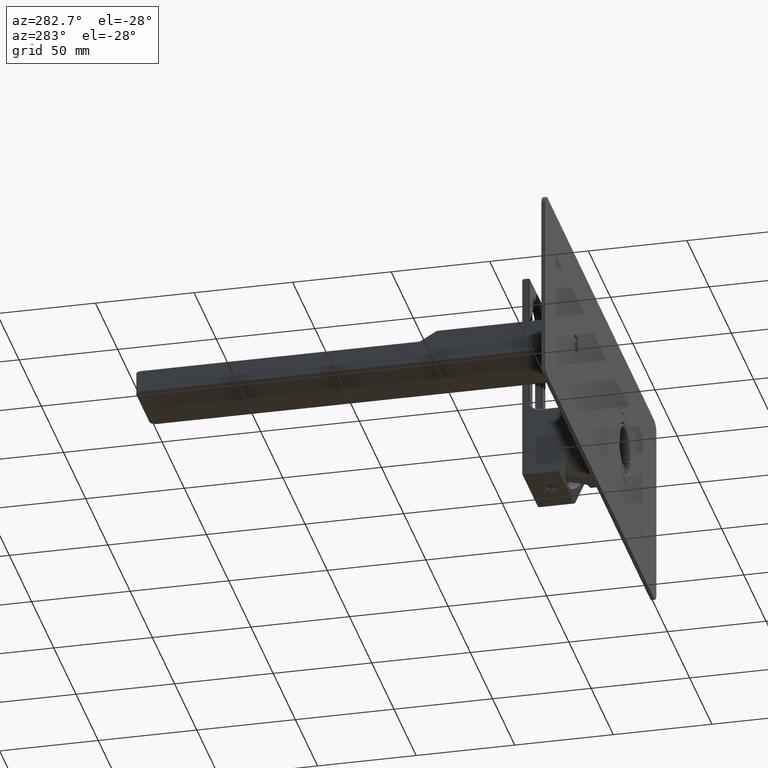
[diagram: clean part render]
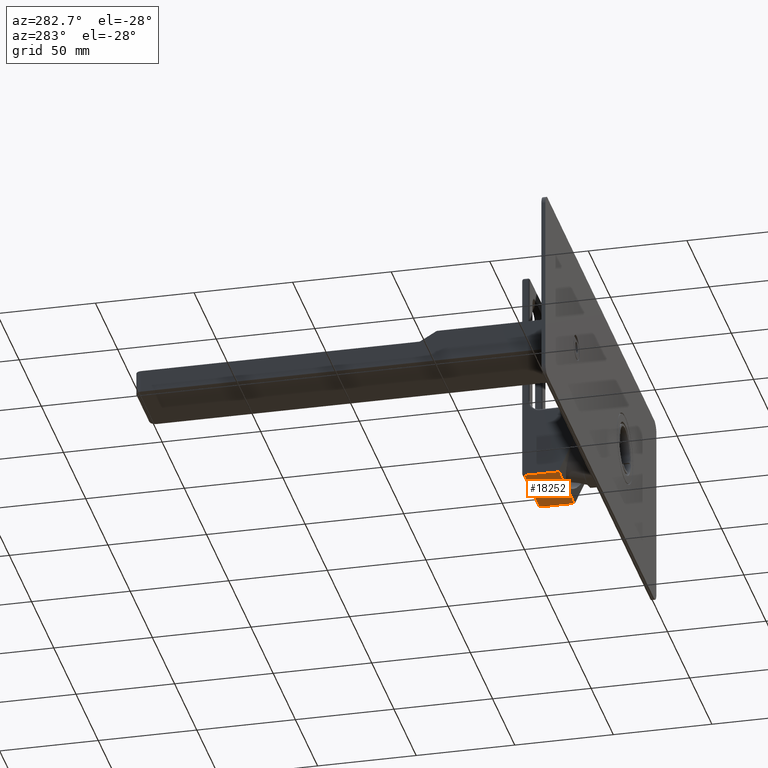
[diagram: same view with one face highlighted and labeled with its STEP entity id]
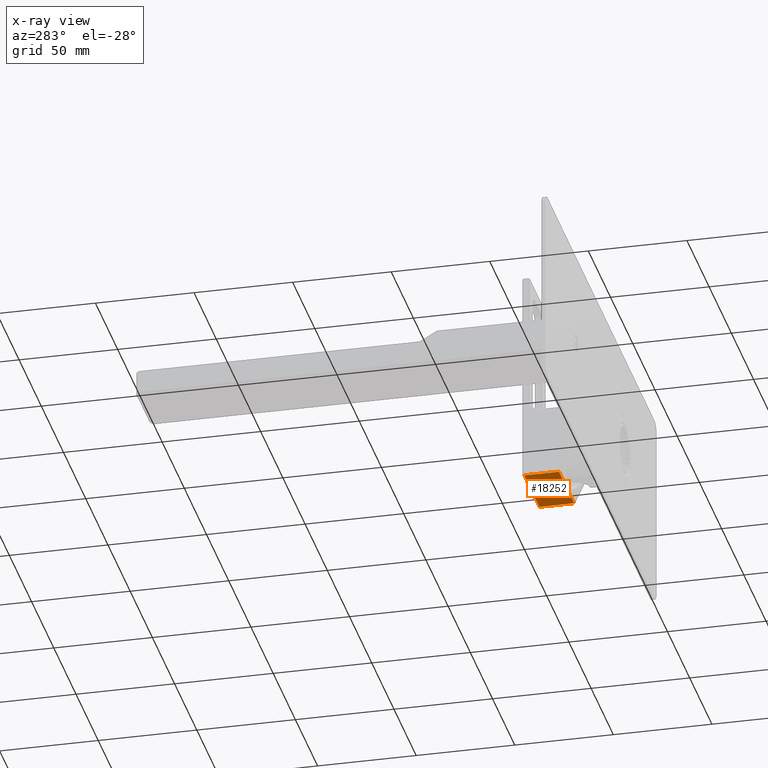
[diagram: x-ray of the same camera — body ghosted, the highlighted face saturated]
A machine part, auxiliary view. The second image highlights one B-rep face of the part: STEP entity #18252.
The next image is the same camera in x-ray: the body ghosted, the highlighted face saturated — about 0% of this face is hidden behind the body in this view.
In plain terms, the highlighted planar face has unit normal (0, -0, -1).
Its self-contained STEP definition (entity closure, byte-faithful):
#16623=DIRECTION('',(1.E0,0.E0,0.E0));
#16624=VECTOR('',#16623,3.400000000074E1);
#16625=CARTESIAN_POINT('',(9.199999999963E1,9.828403517393E1,
-1.828184465409E1));
#16626=LINE('',#16625,#16624);
#16627=DIRECTION('',(2.108568804734E-11,-1.E0,3.208375822546E-14));
#16628=VECTOR('',#16627,1.760646215321E1);
#16629=CARTESIAN_POINT('',(9.199999999963E1,9.828403517393E1,
-1.828184465409E1));
#16630=LINE('',#16629,#16628);
#16631=DIRECTION('',(1.E0,0.E0,0.E0));
#16632=VECTOR('',#16631,3.4E1);
#16633=CARTESIAN_POINT('',(9.2E1,8.067757302072E1,-1.828184465409E1));
#16634=LINE('',#16633,#16632);
#16635=DIRECTION('',(2.110263795735E-11,1.E0,-3.208375822546E-14));
#16636=VECTOR('',#16635,1.760646215321E1);
#16637=CARTESIAN_POINT('',(1.26E2,8.067757302072E1,-1.828184465409E1));
#16638=LINE('',#16637,#16636);
#16639=CARTESIAN_POINT('',(1.09E2,8.828403517393E1,-1.828184465409E1));
#16640=DIRECTION('',(0.E0,-3.186340080674E-14,-1.E0));
#16641=DIRECTION('',(1.E0,0.E0,0.E0));
#16642=AXIS2_PLACEMENT_3D('',#16639,#16640,#16641);
#16644=CARTESIAN_POINT('',(1.09E2,8.828403517393E1,-1.828184465409E1));
#16645=DIRECTION('',(0.E0,-3.186340080674E-14,-1.E0));
#16646=DIRECTION('',(-1.E0,1.093142670400E-14,0.E0));
#16647=AXIS2_PLACEMENT_3D('',#16644,#16645,#16646);
#16766=CARTESIAN_POINT('',(1.26E2,8.067757302072E1,-1.828184465409E1));
#16782=CARTESIAN_POINT('',(9.2E1,8.067757302072E1,-1.828184465409E1));
#17711=VERTEX_POINT('',#16766);
#17714=VERTEX_POINT('',#16782);
#17731=CARTESIAN_POINT('',(9.2E1,9.828403517393E1,-1.828184465409E1));
#17732=VERTEX_POINT('',#17731);
#17733=CARTESIAN_POINT('',(1.260000000004E2,9.828403517393E1,
-1.828184465409E1));
#17734=VERTEX_POINT('',#17733);
#17893=CARTESIAN_POINT('',(1.129E2,8.828403517393E1,-1.828184465409E1));
#17894=VERTEX_POINT('',#17893);
#17895=CARTESIAN_POINT('',(1.051E2,8.828403517393E1,-1.828184465409E1));
#17896=VERTEX_POINT('',#17895);
#18233=CARTESIAN_POINT('',(9.1E1,8.067757302072E1,-1.828184465409E1));
#18234=DIRECTION('',(0.E0,-3.186340080674E-14,-1.E0));
#18235=DIRECTION('',(0.E0,1.E0,-3.186340080674E-14));
#18236=AXIS2_PLACEMENT_3D('',#18233,#18234,#18235);
#18237=PLANE('',#18236);
#18238=ORIENTED_EDGE('',*,*,#18217,.F.);
#18240=ORIENTED_EDGE('',*,*,#18239,.T.);
#18242=ORIENTED_EDGE('',*,*,#18241,.T.);
#18243=ORIENTED_EDGE('',*,*,#18178,.T.);
#18244=EDGE_LOOP('',(#18238,#18240,#18242,#18243));
#18245=FACE_OUTER_BOUND('',#18244,.F.);
#18247=ORIENTED_EDGE('',*,*,#18246,.T.);
#18249=ORIENTED_EDGE('',*,*,#18248,.T.);
#18250=EDGE_LOOP('',(#18247,#18249));
#18251=FACE_BOUND('',#18250,.F.);
#18252=ADVANCED_FACE('',(#18245,#18251),#18237,.T.);
#16643=CIRCLE('',#16642,3.9E0);
#16648=CIRCLE('',#16647,3.9E0);
#18178=EDGE_CURVE('',#17711,#17734,#16638,.T.);
#18217=EDGE_CURVE('',#17732,#17734,#16626,.T.);
#18239=EDGE_CURVE('',#17732,#17714,#16630,.T.);
#18241=EDGE_CURVE('',#17714,#17711,#16634,.T.);
#18246=EDGE_CURVE('',#17894,#17896,#16643,.T.);
#18248=EDGE_CURVE('',#17896,#17894,#16648,.T.);